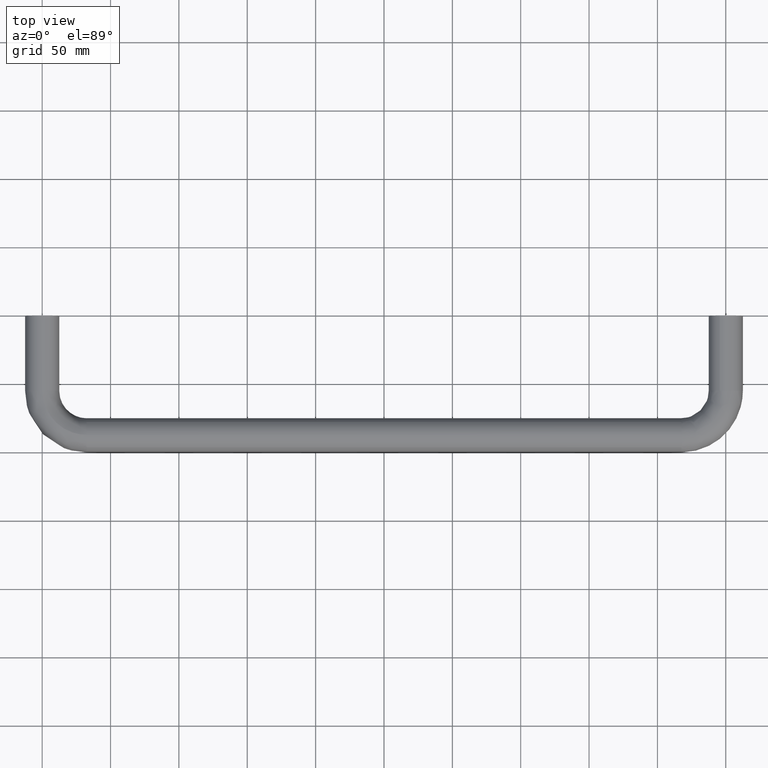
[diagram: clean part render]
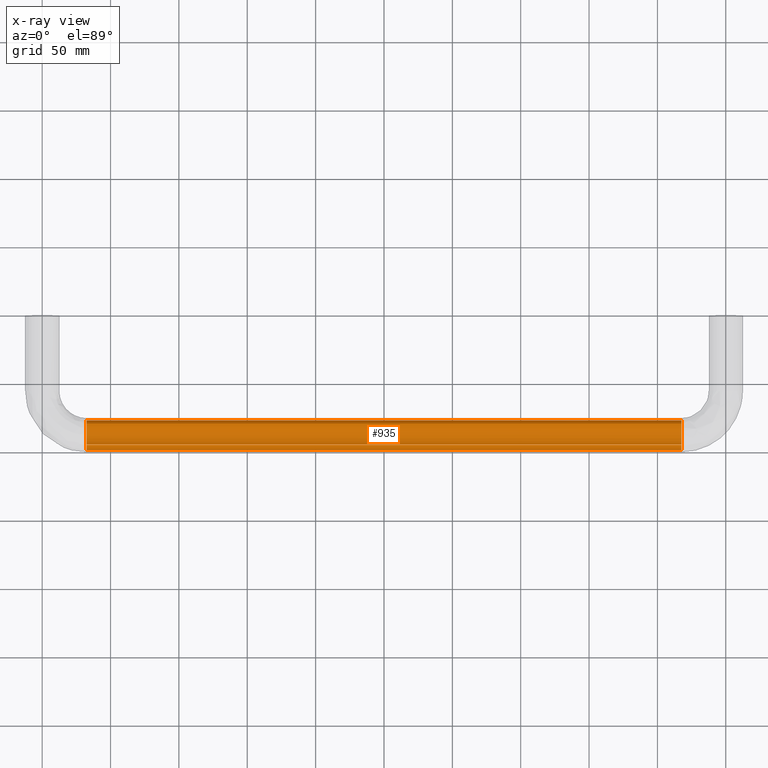
[diagram: x-ray — body ghosted, one internal face saturated and labeled with its STEP entity id]
A machine part, top view, then the same camera in x-ray: the body is ghosted and one INTERNAL B-rep face — a face not visible from any outside direction — is saturated and labeled: STEP entity #935.
In plain terms, the highlighted face is a freeform B-spline surface patch.
Its self-contained STEP definition (entity closure, byte-faithful):
#723=CARTESIAN_POINT('',(467.500000000000000,-78.982800581649968,6.640580853212908));
#724=VERTEX_POINT('',#723);
#725=CARTESIAN_POINT('',(467.500000000000000,-94.616829611869420,8.123468241805250));
#726=VERTEX_POINT('',#725);
#742=CARTESIAN_POINT('',(32.499974284620080,-94.616831255885387,8.123466800722145));
#743=VERTEX_POINT('',#742);
#744=CARTESIAN_POINT('',(32.499974284620080,-94.616831255885387,8.123466800722145));
#745=CARTESIAN_POINT('',(467.500000000000000,-94.616829611869420,8.123468241805250));
#746=QUASI_UNIFORM_CURVE('',1,(#744,#745),.UNSPECIFIED.,.F.,.U.);
#747=EDGE_CURVE('',#743,#726,#746,.T.);
#764=CARTESIAN_POINT('',(32.499992078058924,-78.994009465607007,6.631732185456267));
#765=VERTEX_POINT('',#764);
#779=CARTESIAN_POINT('',(32.499992078058924,-78.994009465607007,6.631732185456267));
#780=CARTESIAN_POINT('',(467.500000000000000,-78.982800581649968,6.640580853212908));
#781=QUASI_UNIFORM_CURVE('',1,(#779,#780),.UNSPECIFIED.,.F.,.U.);
#782=EDGE_CURVE('',#765,#724,#781,.T.);
#787=CARTESIAN_POINT('',(21.624969984678689,-94.616829611862585,8.123468241811240));
#788=CARTESIAN_POINT('',(21.624969984678700,-102.740297853673840,1.006638629948659));
#789=CARTESIAN_POINT('',(21.624969984678689,-95.623468241811238,-7.116829611862581));
#790=CARTESIAN_POINT('',(21.624969984678700,-88.506638629948654,-15.240297853673827));
#791=CARTESIAN_POINT('',(21.624969984678689,-80.383170388137415,-8.123468241811240));
#792=CARTESIAN_POINT('',(21.624969984678696,-72.711745210058254,-1.402665716661103));
#793=CARTESIAN_POINT('',(21.624969984678692,-78.982800581275356,6.640580852732417));
#794=CARTESIAN_POINT('',(478.646875750388290,-94.616829611862585,8.123468241811240));
#795=CARTESIAN_POINT('',(478.646875750388400,-102.740297853673840,1.006638629948659));
#796=CARTESIAN_POINT('',(478.646875750388290,-95.623468241811238,-7.116829611862581));
#797=CARTESIAN_POINT('',(478.646875750388400,-88.506638629948654,-15.240297853673827));
#798=CARTESIAN_POINT('',(478.646875750388290,-80.383170388137415,-8.123468241811240));
#799=CARTESIAN_POINT('',(478.646875750388180,-72.711745210058254,-1.402665716661103));
#800=CARTESIAN_POINT('',(478.646875750388400,-78.982800581275356,6.640580852732417));
#808=(BOUNDED_SURFACE()B_SPLINE_SURFACE(2,1,((#787,#794),(#788,#795),(#789,#796),(#790,#797),(#791,#798),(#792,#799),(#793,#800)),.UNSPECIFIED.,.F.,.F.,.U.)B_SPLINE_SURFACE_WITH_KNOTS((3,2,2,3),(2,2),(0.0,17.894025894517721,35.788051789035443,52.966316647772452),(0.0,457.021905765709620),.UNSPECIFIED.)GEOMETRIC_REPRESENTATION_ITEM()RATIONAL_B_SPLINE_SURFACE(((1.0,1.0),(0.707106781186548,0.707106781186548),(1.0,1.0),(0.707106781186548,0.707106781186548),(1.0,1.0),(0.718822509939086,0.718822509939086),(0.977505800795127,0.977505800795127)))REPRESENTATION_ITEM('')SURFACE());
#809=CARTESIAN_POINT('',(467.500000000000000,-76.699999999999989,0.0));
#810=VERTEX_POINT('',#809);
#811=CARTESIAN_POINT('',(467.500000000000000,-76.699999999999989,0.0));
#812=CARTESIAN_POINT('',(467.499999999999940,-76.699999999999974,3.712664122168394));
#813=CARTESIAN_POINT('',(467.500000000000000,-78.982800581649968,6.640580853212908));
#821=(BOUNDED_CURVE()B_SPLINE_CURVE(2,(#811,#812,#813),.UNSPECIFIED.,.F.,.U.)B_SPLINE_CURVE_WITH_KNOTS((3,3),(0.500000000000000,0.606390213519354),.UNSPECIFIED.)CURVE()GEOMETRIC_REPRESENTATION_ITEM()RATIONAL_B_SPLINE_CURVE((1.0,0.875356111648264,0.856799342461517))REPRESENTATION_ITEM(''));
#822=EDGE_CURVE('',#810,#724,#821,.T.);
#823=ORIENTED_EDGE('',*,*,#822,.T.);
#824=ORIENTED_EDGE('',*,*,#782,.F.);
#825=CARTESIAN_POINT('',(32.499999778139959,-77.217366621725546,3.302643003413232));
#826=VERTEX_POINT('',#825);
#827=CARTESIAN_POINT('',(32.499999778139959,-77.217366621725560,3.302643003413233));
#828=CARTESIAN_POINT('',(32.499996260805169,-77.811120437994177,5.121784315115529));
#829=CARTESIAN_POINT('',(32.499992078058924,-78.994009465606993,6.631732185456268));
#837=(BOUNDED_CURVE()B_SPLINE_CURVE(2,(#827,#828,#829),.UNSPECIFIED.,.F.,.U.)B_SPLINE_CURVE_WITH_KNOTS((3,3),(0.302010143182811,0.356079757701476),.UNSPECIFIED.)CURVE()GEOMETRIC_REPRESENTATION_ITEM()RATIONAL_B_SPLINE_CURVE((0.903486006473256,0.866496794406417,0.856908546323003))REPRESENTATION_ITEM(''));
#838=EDGE_CURVE('',#826,#765,#837,.T.);
#839=ORIENTED_EDGE('',*,*,#838,.F.);
#840=CARTESIAN_POINT('',(32.500000000000000,-87.500000000000000,-10.800000000000001));
#841=VERTEX_POINT('',#840);
#842=CARTESIAN_POINT('',(32.500000000000000,-87.500000000000000,-10.800000000000001));
#843=CARTESIAN_POINT('',(32.500000000000007,-76.699999999999989,-10.800000000000001));
#844=CARTESIAN_POINT('',(32.500000000000000,-76.699999999999989,0.0));
#845=CARTESIAN_POINT('',(32.500000000000000,-76.699999999999989,1.691844837259246));
#846=CARTESIAN_POINT('',(32.499999778139959,-77.217366621725560,3.302643003413233));
#854=(BOUNDED_CURVE()B_SPLINE_CURVE(2,(#842,#843,#844,#845,#846),.UNSPECIFIED.,.F.,.U.)B_SPLINE_CURVE_WITH_KNOTS((3,2,3),(0.0,0.250000000000000,0.302010143182811),.UNSPECIFIED.)CURVE()GEOMETRIC_REPRESENTATION_ITEM()RATIONAL_B_SPLINE_CURVE((1.0,0.707106781186548,1.0,0.939066327008952,0.903486006473256))REPRESENTATION_ITEM(''));
#855=EDGE_CURVE('',#841,#826,#854,.T.);
#856=ORIENTED_EDGE('',*,*,#855,.F.);
#857=CARTESIAN_POINT('',(32.499974284620073,-94.616831255885387,8.123466800722147));
#858=CARTESIAN_POINT('',(32.499978627759369,-98.299999999983697,4.896705236848080));
#859=CARTESIAN_POINT('',(32.499985266249908,-98.299999999988756,-8.938780E-010));
#860=CARTESIAN_POINT('',(32.499999907869991,-98.299999999999940,-10.800000000005593));
#861=CARTESIAN_POINT('',(32.500000000000000,-87.500000000000000,-10.800000000000001));
#869=(BOUNDED_CURVE()B_SPLINE_CURVE(2,(#857,#858,#859,#860,#861),.UNSPECIFIED.,.F.,.U.)B_SPLINE_CURVE_WITH_KNOTS((3,2,3),(0.615044533836194,0.750000000000000,1.0),.UNSPECIFIED.)CURVE()GEOMETRIC_REPRESENTATION_ITEM()RATIONAL_B_SPLINE_CURVE((0.854482319540248,0.841889836475251,1.0,0.707106781186548,1.0))REPRESENTATION_ITEM(''));
#870=EDGE_CURVE('',#743,#841,#869,.T.);
#871=ORIENTED_EDGE('',*,*,#870,.F.);
#872=ORIENTED_EDGE('',*,*,#747,.T.);
#873=CARTESIAN_POINT('',(467.500000000000000,-98.299999999999997,0.0));
#874=VERTEX_POINT('',#873);
#875=CARTESIAN_POINT('',(467.499999999999940,-94.616829611869420,8.123468241805250));
#876=CARTESIAN_POINT('',(467.500000000000000,-98.299999999999997,4.896706555342663));
#877=CARTESIAN_POINT('',(467.500000000000000,-98.299999999999997,0.0));
#885=(BOUNDED_CURVE()B_SPLINE_CURVE(2,(#875,#876,#877),.UNSPECIFIED.,.F.,.U.)B_SPLINE_CURVE_WITH_KNOTS((3,3),(0.865044503273416,1.0),.UNSPECIFIED.)CURVE()GEOMETRIC_REPRESENTATION_ITEM()RATIONAL_B_SPLINE_CURVE((0.854482325243786,0.841889800668730,1.0))REPRESENTATION_ITEM(''));
#886=EDGE_CURVE('',#726,#874,#885,.T.);
#887=ORIENTED_EDGE('',*,*,#886,.T.);
#888=CARTESIAN_POINT('',(467.500000000005120,-91.851389506064464,-9.884604664148792));
#889=VERTEX_POINT('',#888);
#890=CARTESIAN_POINT('',(467.500000000000000,-98.299999999999997,0.0));
#891=CARTESIAN_POINT('',(467.499999999999940,-98.299999999999997,-7.045804632364992));
#892=CARTESIAN_POINT('',(467.500000000005170,-91.851389506064464,-9.884604664148792));
#900=(BOUNDED_CURVE()B_SPLINE_CURVE(2,(#890,#891,#892),.UNSPECIFIED.,.F.,.U.)B_SPLINE_CURVE_WITH_KNOTS((3,3),(0.0,0.181585009850173),.UNSPECIFIED.)CURVE()GEOMETRIC_REPRESENTATION_ITEM()RATIONAL_B_SPLINE_CURVE((1.0,0.787259927906842,0.883563120506184))REPRESENTATION_ITEM(''));
#901=EDGE_CURVE('',#874,#889,#900,.T.);
#902=ORIENTED_EDGE('',*,*,#901,.T.);
#903=CARTESIAN_POINT('',(467.499999999726010,-77.615395336039370,-4.351389506491920));
#904=VERTEX_POINT('',#903);
#905=CARTESIAN_POINT('',(467.500000000005170,-91.851389506064464,-9.884604664148792));
#906=CARTESIAN_POINT('',(467.499999999999940,-89.771979930617718,-10.800000000000001));
#907=CARTESIAN_POINT('',(467.500000000000000,-87.500000000000000,-10.800000000000001));
#908=CARTESIAN_POINT('',(467.500000000000060,-80.454195368300802,-10.800000000000001));
#909=CARTESIAN_POINT('',(467.499999999726070,-77.615395336039370,-4.351389506491921));
#917=(BOUNDED_CURVE()B_SPLINE_CURVE(2,(#905,#906,#907,#908,#909),.UNSPECIFIED.,.F.,.U.)B_SPLINE_CURVE_WITH_KNOTS((3,2,3),(0.181585009850173,0.250000000000000,0.431585009836664),.UNSPECIFIED.)CURVE()GEOMETRIC_REPRESENTATION_ITEM()RATIONAL_B_SPLINE_CURVE((0.883563120506184,0.919846853279706,1.0,0.787259927922668,0.883563120491855))REPRESENTATION_ITEM(''));
#918=EDGE_CURVE('',#889,#904,#917,.T.);
#919=ORIENTED_EDGE('',*,*,#918,.T.);
#920=CARTESIAN_POINT('',(467.499999999726070,-77.615395336039370,-4.351389506491921));
#921=CARTESIAN_POINT('',(467.500000000000000,-76.700000000000003,-2.271979931105431));
#922=CARTESIAN_POINT('',(467.500000000000000,-76.699999999999989,0.0));
#930=(BOUNDED_CURVE()B_SPLINE_CURVE(2,(#920,#921,#922),.UNSPECIFIED.,.F.,.U.)B_SPLINE_CURVE_WITH_KNOTS((3,3),(0.431585009836664,0.500000000000000),.UNSPECIFIED.)CURVE()GEOMETRIC_REPRESENTATION_ITEM()RATIONAL_B_SPLINE_CURVE((0.883563120491855,0.919846853263879,1.0))REPRESENTATION_ITEM(''));
#931=EDGE_CURVE('',#904,#810,#930,.T.);
#932=ORIENTED_EDGE('',*,*,#931,.T.);
#933=EDGE_LOOP('',(#823,#824,#839,#856,#871,#872,#887,#902,#919,#932));
#934=FACE_OUTER_BOUND('',#933,.T.);
#935=ADVANCED_FACE('',(#934),#808,.F.);